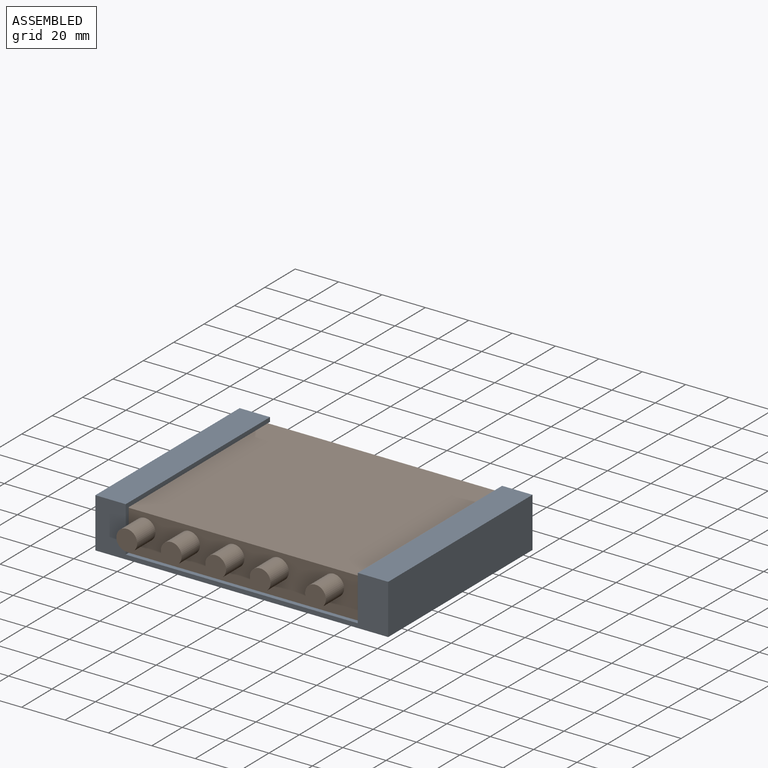
[diagram: assembled view]
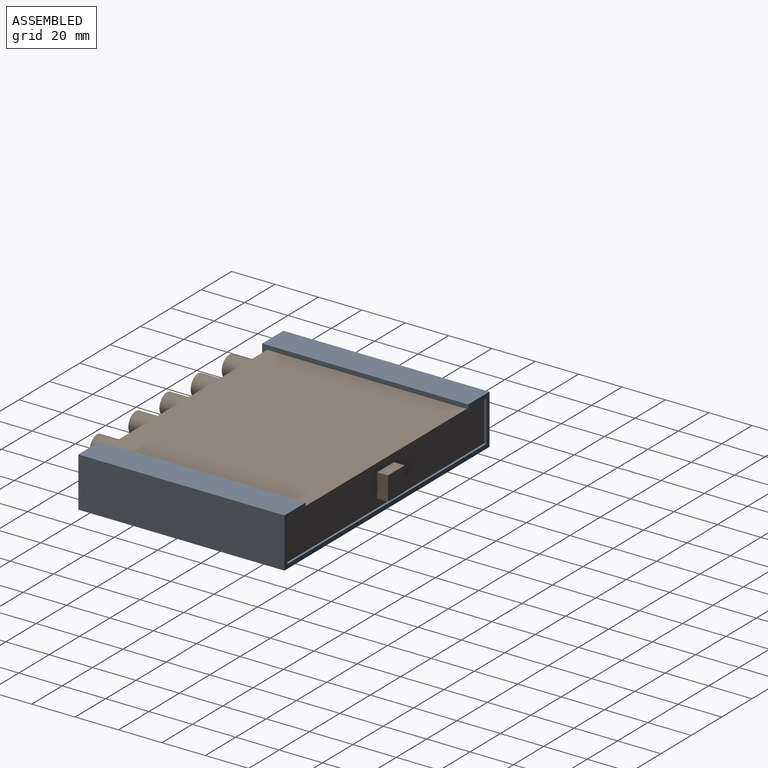
[diagram: assembled view, second angle]
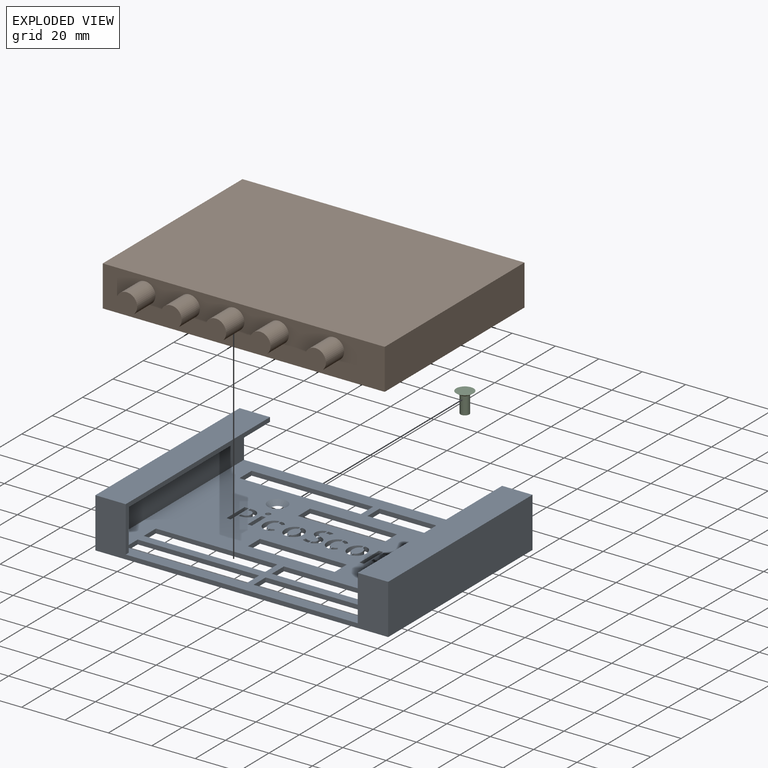
[diagram: exploded view]
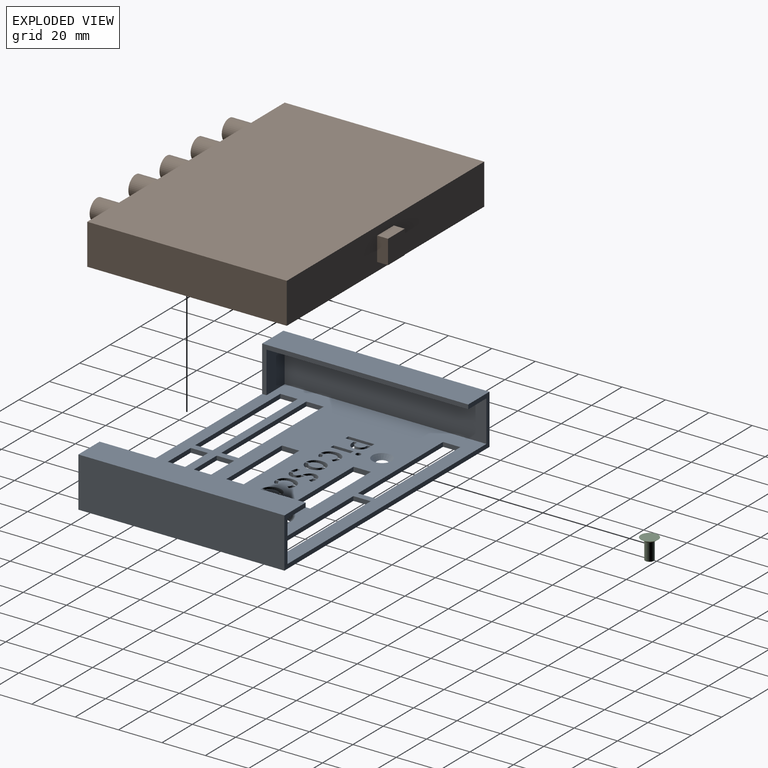
[diagram: exploded view, second angle]
ASSEMBLY  parts=3 mates=5
PART A: 326 faces, bbox 135x95x23 mm
  f0: plane 135x95mm, normal (0,0,-1), area 9135.7mm2, adj f3,f4,f7,f9,f16,f17,f18,f19
  f1: plane 131x95mm, normal (0,0,1), area 8620.2mm2, adj f3,f4,f6,f10,f12,f13,f14,f15
  f2: plane 95x14mm, normal (0,0,1), area 1330mm2, adj f3,f4,f7,f15
  f3: plane 135x23mm, normal (0,1,0), area 402mm2, adj f0,f1,f2,f5,f7,f8,f9,f10
  f4: plane 135x23mm, normal (0,-1,0), area 858mm2, adj f0,f1,f2,f7,f8,f9,f14,f15
  f5: plane 93x12mm, normal (0,0,-1), area 1116mm2, adj f3,f6,f10,f15
  f6: plane 19x12mm, normal (0,1,0), area 228mm2, adj f1,f5,f10,f15
  f7: plane 95x23mm, normal (1,0,0), area 2185mm2, adj f0,f2,f3,f4
  f8: plane 95x14mm, normal (0,0,1), area 1330mm2, adj f3,f4,f9,f14
  f9: plane 95x23mm, normal (-1,0,0), area 2185mm2, adj f0,f3,f4,f8
  f10: plane 93x19mm, normal (-1,0,0), area 1767mm2, adj f1,f3,f5,f6
  f11: plane 93x12mm, normal (0,0,-1), area 1116mm2, adj f3,f12,f13,f14
  f12: plane 93x19mm, normal (1,0,0), area 1767mm2, adj f1,f3,f11,f13
  f13: plane 19x12mm, normal (0,1,0), area 228mm2, adj f1,f11,f12,f14
  f14: plane 95x21mm, normal (1,0,0), area 228mm2, adj f1,f3,f4,f8,f11,f13
  f15: plane 95x21mm, normal (-1,0,0), area 228mm2, adj f1,f2,f3,f4,f5,f6
  f16: cone r=2.25mm half-angle=45deg, axis (0,0,1), area 61.8mm2, adj f0,f1
  f17: cone r=2.25mm half-angle=45deg, axis (0,0,1), area 61.8mm2, adj f0,f1
  f18: extruded ~2x1.76mm, area 3.6mm2, adj f0,f1,f19,f33
  f19: extruded ~2x1.76mm, area 3.6mm2, adj f0,f1,f18,f20
  f20: extruded ~2x1.45mm, area 3.3mm2, adj f0,f1,f19,f21
  f21: extruded ~2x1.22mm, area 3.2mm2, adj f0,f1,f20,f22
  f22: extruded ~2x1.61mm, area 3.4mm2, adj f0,f1,f21,f23
  f23: plane 2x1.56mm, normal (-1,0,0), area 3.1mm2, adj f0,f1,f22,f24
  f24: extruded ~2x0.76mm, area 1.7mm2, adj f0,f1,f23,f25
  f25: extruded ~2x0.7mm, area 1.8mm2, adj f0,f1,f24,f26
  f26: extruded ~2x0.96mm, area 2mm2, adj f0,f1,f25,f27
  f27: extruded ~2x1.14mm, area 2.3mm2, adj f0,f1,f26,f28
  f28: extruded ~2.04x2mm, area 4.2mm2, adj f0,f1,f27,f29
  f29: extruded ~2x1.3mm, area 3.4mm2, adj f0,f1,f28,f30
  f30: plane 2x1.52mm, normal (-1,0,0), area 3mm2, adj f0,f1,f29,f31
  f31: extruded ~2x1.58mm, area 3.3mm2, adj f0,f1,f30,f32
  f32: extruded ~2x1.23mm, area 3.2mm2, adj f0,f1,f31,f33
  f33: extruded ~2x1.42mm, area 3.3mm2, adj f0,f1,f18,f32
  f34: extruded ~2x1.63mm, area 3.4mm2, adj f0,f1,f35,f49
  f35: plane 2x1.53mm, normal (1,0,0), area 3.1mm2, adj f0,f1,f34,f36
  f36: extruded ~2x0.76mm, area 1.7mm2, adj f0,f1,f35,f37
  f37: extruded ~2x0.7mm, area 1.8mm2, adj f0,f1,f36,f38
  f38: extruded ~2x0.95mm, area 2mm2, adj f0,f1,f37,f39
  f39: extruded ~2x1.13mm, area 2.3mm2, adj f0,f1,f38,f40
  f40: extruded ~2.03x2mm, area 4.2mm2, adj f0,f1,f39,f41
  f41: extruded ~2x1.33mm, area 3.5mm2, adj f0,f1,f40,f42
  f42: plane 2x1.56mm, normal (1,0,0), area 3.1mm2, adj f0,f1,f41,f43
  f43: extruded ~2x1.6mm, area 3.3mm2, adj f0,f1,f42,f44
  f44: extruded ~2x1.24mm, area 3.2mm2, adj f0,f1,f43,f45
  f45: extruded ~2x1.43mm, area 3.3mm2, adj f0,f1,f44,f46
  f46: extruded ~2x1.77mm, area 3.6mm2, adj f0,f1,f45,f47
  f47: extruded ~2x1.77mm, area 3.6mm2, adj f0,f1,f46,f48
  f48: extruded ~2x1.46mm, area 3.3mm2, adj f0,f1,f47,f49
  f49: extruded ~2x1.23mm, area 3.2mm2, adj f0,f1,f34,f48
  f50: extruded ~2x1.74mm, area 3.5mm2, adj f0,f1,f51,f65
  f51: extruded ~2x1.76mm, area 3.6mm2, adj f0,f1,f50,f52
  f52: extruded ~2x1.46mm, area 3.3mm2, adj f0,f1,f51,f53
  f53: extruded ~2x1.22mm, area 3.2mm2, adj f0,f1,f52,f54
  f54: extruded ~2x1.61mm, area 3.4mm2, adj f0,f1,f53,f55
  f55: plane 2x1.61mm, normal (-1,0,0), area 3.2mm2, adj f0,f1,f54,f56
  f56: extruded ~2x0.76mm, area 1.7mm2, adj f0,f1,f55,f57
  f57: extruded ~2x0.68mm, area 1.8mm2, adj f0,f1,f56,f58
  f58: extruded ~2x0.94mm, area 2mm2, adj f0,f1,f57,f59
  f59: extruded ~2x1.13mm, area 2.3mm2, adj f0,f1,f58,f60
  f60: extruded ~2x1.99mm, area 4.2mm2, adj f0,f1,f59,f61
  f61: extruded ~2x1.3mm, area 3.4mm2, adj f0,f1,f60,f62
  f62: plane 2x1.58mm, normal (-1,0,0), area 3.2mm2, adj f0,f1,f61,f63
  f63: extruded ~2x1.59mm, area 3.3mm2, adj f0,f1,f62,f64
  f64: extruded ~2x1.23mm, area 3.2mm2, adj f0,f1,f63,f65
  f65: extruded ~2x1.43mm, area 3.3mm2, adj f0,f1,f50,f64
  f66: extruded ~2x1mm, area 2.1mm2, adj f0,f1,f67,f71
  f67: plane 2x1.61mm, normal (1,0,0), area 3.2mm2, adj f0,f1,f66,f68
  f68: extruded ~2x1.43mm, area 3mm2, adj f0,f1,f67,f69
  f69: extruded ~2x1.09mm, area 2.9mm2, adj f0,f1,f68,f70
  f70: plane 2x1.06mm, normal (-0.82,-0.57,0), area 2.6mm2, adj f0,f1,f69,f71
  f71: extruded ~2x0.79mm, area 1.9mm2, adj f0,f1,f66,f70
  f72: extruded ~2x1.51mm, area 3.1mm2, adj f0,f1,f73,f93
  f73: plane 2x0.83mm, normal (0,-1,0), area 1.7mm2, adj f0,f1,f72,f74
  f74: plane 2x1.48mm, normal (1,0,0), area 3mm2, adj f0,f1,f73,f75
  f75: plane 2x0.8mm, normal (0,1,0), area 1.6mm2, adj f0,f1,f74,f76
  f76: extruded ~2x1.21mm, area 2.5mm2, adj f0,f1,f75,f77
  f77: extruded ~2x0.71mm, area 1.9mm2, adj f0,f1,f76,f78
  f78: extruded ~2x0.73mm, area 1.6mm2, adj f0,f1,f77,f79
  f79: extruded ~2x0.68mm, area 1.4mm2, adj f0,f1,f78,f80
  f80: extruded ~2x1.23mm, area 2.5mm2, adj f0,f1,f79,f81
  f81: extruded ~2x0.77mm, area 1.8mm2, adj f0,f1,f80,f82
  f82: extruded ~2x0.64mm, area 1.5mm2, adj f0,f1,f81,f83
  f83: extruded ~2x0.71mm, area 1.4mm2, adj f0,f1,f82,f84
  f84: plane 2x1.12mm, normal (0,-1,0), area 2.2mm2, adj f0,f1,f83,f85
  f85: plane 2x1.43mm, normal (1,0,0), area 2.9mm2, adj f0,f1,f84,f86
  f86: plane 2x0.78mm, normal (0,1,0), area 1.6mm2, adj f0,f1,f85,f87
  f87: extruded ~2x1.73mm, area 3.5mm2, adj f0,f1,f86,f88
  f88: extruded ~2x1.33mm, area 3.1mm2, adj f0,f1,f87,f89
  f89: extruded ~2x1.24mm, area 3.1mm2, adj f0,f1,f88,f90
  f90: extruded ~2x1.65mm, area 3.4mm2, adj f0,f1,f89,f91
  f91: extruded ~2x1.56mm, area 3.2mm2, adj f0,f1,f90,f92
  f92: extruded ~2x1.18mm, area 3.1mm2, adj f0,f1,f91,f93
  f93: extruded ~2x1.34mm, area 3.1mm2, adj f0,f1,f72,f92
  f94: plane 2x1.99mm, normal (0,1,0), area 4mm2, adj f0,f1,f95,f97
  f95: plane 9.18x2mm, normal (-1,0,0), area 18.4mm2, adj f0,f1,f94,f96
  f96: plane 2x1.99mm, normal (0,-1,0), area 4mm2, adj f0,f1,f95,f97
  f97: plane 9.18x2mm, normal (1,0,0), area 18.4mm2, adj f0,f1,f94,f96
  f98: extruded ~2x0.82mm, area 1.8mm2, adj f0,f1,f99,f105
  f99: extruded ~2x0.83mm, area 1.8mm2, adj f0,f1,f98,f100
  f100: extruded ~2x0.83mm, area 1.8mm2, adj f0,f1,f99,f101
  f101: extruded ~2x0.82mm, area 1.8mm2, adj f0,f1,f100,f102
  f102: extruded ~2x0.83mm, area 1.8mm2, adj f0,f1,f101,f103
  f103: extruded ~2x0.81mm, area 1.8mm2, adj f0,f1,f102,f104
  f104: extruded ~2x0.82mm, area 1.8mm2, adj f0,f1,f103,f105
  f105: extruded ~2x0.83mm, area 1.8mm2, adj f0,f1,f98,f104
  f106: extruded ~2x0.67mm, area 1.7mm2, adj f0,f1,f107,f111
  f107: plane 2x1.06mm, normal (-0.77,0.64,0), area 2.8mm2, adj f0,f1,f106,f108
  f108: extruded ~2x1.16mm, area 3.1mm2, adj f0,f1,f107,f109
  f109: extruded ~2x1.54mm, area 3.2mm2, adj f0,f1,f108,f110
  f110: plane 2x1.56mm, normal (1,0,0), area 3.1mm2, adj f0,f1,f109,f111
  f111: extruded ~2x1.15mm, area 2.4mm2, adj f0,f1,f106,f110
  f112: extruded ~2x1.1mm, area 2.4mm2, adj f0,f1,f113,f124
  f113: plane 2x1.91mm, normal (1,0,0), area 3.8mm2, adj f0,f1,f112,f114
  f114: extruded ~2x0.96mm, area 2.4mm2, adj f0,f1,f113,f115
  f115: extruded ~2x0.94mm, area 2.1mm2, adj f0,f1,f114,f116
  f116: extruded ~2x1.77mm, area 4.9mm2, adj f0,f1,f115,f117
  f117: plane 2x1.56mm, normal (1,0,0), area 3.1mm2, adj f0,f1,f116,f118
  f118: extruded ~2x1.33mm, area 2.8mm2, adj f0,f1,f117,f119
  f119: extruded ~2x0.99mm, area 2.5mm2, adj f0,f1,f118,f120
  f120: extruded ~2x1mm, area 2.4mm2, adj f0,f1,f119,f121
  f121: extruded ~2x1.14mm, area 2.3mm2, adj f0,f1,f120,f122
  f122: extruded ~2x1.42mm, area 2.9mm2, adj f0,f1,f121,f123
  f123: extruded ~2x0.97mm, area 2.5mm2, adj f0,f1,f122,f124
  f124: extruded ~2x1.02mm, area 2.4mm2, adj f0,f1,f112,f123
  f125: extruded ~2x0.58mm, area 1.3mm2, adj f0,f1,f126,f136
  f126: plane 2x1.4mm, normal (0.97,-0.24,0), area 2.9mm2, adj f0,f1,f125,f127
  f127: extruded ~2x0.66mm, area 1.6mm2, adj f0,f1,f126,f128
  f128: extruded ~2x0.8mm, area 1.7mm2, adj f0,f1,f127,f129
  f129: extruded ~2x0.84mm, area 1.7mm2, adj f0,f1,f128,f130
  f130: extruded ~2x0.81mm, area 1.6mm2, adj f0,f1,f129,f131
  f131: plane 2x0.03mm, normal (0,1,0), area 0.1mm2, adj f0,f1,f130,f132
  f132: plane 2x1.55mm, normal (-1,0,0), area 3.1mm2, adj f0,f1,f131,f133
  f133: plane 2x0.05mm, normal (0,-1,0), area 0.1mm2, adj f0,f1,f132,f134
  f134: extruded ~2x0.7mm, area 1.4mm2, adj f0,f1,f133,f135
  f135: extruded ~2x0.75mm, area 1.5mm2, adj f0,f1,f134,f136
  f136: extruded ~2x0.72mm, area 1.5mm2, adj f0,f1,f125,f135
  f137: extruded ~2x1.29mm, area 2.6mm2, adj f0,f1,f138,f150
  f138: extruded ~2x1.29mm, area 2.7mm2, adj f0,f1,f137,f139
  f139: extruded ~2x0.94mm, area 2.4mm2, adj f0,f1,f138,f140
  f140: extruded ~2x0.98mm, area 2.4mm2, adj f0,f1,f139,f141
  f141: extruded ~2x1.08mm, area 2.4mm2, adj f0,f1,f140,f142
  f142: plane 2x1.86mm, normal (-1,0,0), area 3.7mm2, adj f0,f1,f141,f143
  f143: extruded ~2x0.86mm, area 2.2mm2, adj f0,f1,f142,f144
  f144: extruded ~2x1.03mm, area 2.2mm2, adj f0,f1,f143,f145
  f145: extruded ~2x0.9mm, area 2mm2, adj f0,f1,f144,f146
  f146: extruded ~2x0.86mm, area 2.2mm2, adj f0,f1,f145,f147
  f147: plane 2x1.71mm, normal (-1,0,0), area 3.4mm2, adj f0,f1,f146,f148
  f148: extruded ~2x1.18mm, area 2.5mm2, adj f0,f1,f147,f149
  f149: extruded ~2x0.98mm, area 2.4mm2, adj f0,f1,f148,f150
  f150: extruded ~2x1mm, area 2.4mm2, adj f0,f1,f137,f149
  f151: extruded ~2x0.2mm, area 0.5mm2, adj f0,f1,f152,f161
  f152: extruded ~2x0.16mm, area 0.4mm2, adj f0,f1,f151,f153
  f153: extruded ~2x0.37mm, area 0.8mm2, adj f0,f1,f152,f154
  f154: extruded ~2x0.47mm, area 1.1mm2, adj f0,f1,f153,f155
  f155: extruded ~2x0.46mm, area 1mm2, adj f0,f1,f154,f156
  f156: extruded ~2x1.2mm, area 2.6mm2, adj f0,f1,f155,f157
  f157: extruded ~2x1.46mm, area 2.9mm2, adj f0,f1,f156,f158
  f158: plane 2x1.64mm, normal (1,0,0), area 3.3mm2, adj f0,f1,f157,f159
  f159: extruded ~2x0.83mm, area 1.7mm2, adj f0,f1,f158,f160
  f160: extruded ~2x0.54mm, area 1.1mm2, adj f0,f1,f159,f161
  f161: extruded ~2x0.33mm, area 0.7mm2, adj f0,f1,f151,f160
  f162: extruded ~2x1.63mm, area 3.4mm2, adj f0,f1,f163,f177
  f163: plane 2x1.53mm, normal (1,0,0), area 3.1mm2, adj f0,f1,f162,f164
  f164: extruded ~2x0.76mm, area 1.7mm2, adj f0,f1,f163,f165
  f165: extruded ~2x0.7mm, area 1.8mm2, adj f0,f1,f164,f166
  f166: extruded ~2x0.95mm, area 2mm2, adj f0,f1,f165,f167
  f167: extruded ~2x1.13mm, area 2.3mm2, adj f0,f1,f166,f168
  f168: extruded ~2.03x2mm, area 4.2mm2, adj f0,f1,f167,f169
  f169: extruded ~2x1.33mm, area 3.5mm2, adj f0,f1,f168,f170
  f170: plane 2x1.56mm, normal (1,0,0), area 3.1mm2, adj f0,f1,f169,f171
  f171: extruded ~2x1.6mm, area 3.3mm2, adj f0,f1,f170,f172
  f172: extruded ~2x1.24mm, area 3.2mm2, adj f0,f1,f171,f173
  f173: extruded ~2x1.43mm, area 3.3mm2, adj f0,f1,f172,f174
  f174: extruded ~2x1.77mm, area 3.6mm2, adj f0,f1,f173,f175
  f175: extruded ~2x1.77mm, area 3.6mm2, adj f0,f1,f174,f176
  f176: extruded ~2x1.46mm, area 3.3mm2, adj f0,f1,f175,f177
  f177: extruded ~2x1.23mm, area 3.2mm2, adj f0,f1,f162,f176
  f178: extruded ~2x1.74mm, area 3.5mm2, adj f0,f1,f179,f193
  f179: extruded ~2x1.76mm, area 3.6mm2, adj f0,f1,f178,f180
  f180: extruded ~2x1.46mm, area 3.3mm2, adj f0,f1,f179,f181
  f181: extruded ~2x1.22mm, area 3.2mm2, adj f0,f1,f180,f182
  f182: extruded ~2x1.61mm, area 3.4mm2, adj f0,f1,f181,f183
  f183: plane 2x1.61mm, normal (-1,0,0), area 3.2mm2, adj f0,f1,f182,f184
  f184: extruded ~2x0.76mm, area 1.7mm2, adj f0,f1,f183,f185
  f185: extruded ~2x0.68mm, area 1.8mm2, adj f0,f1,f184,f186
  f186: extruded ~2x0.94mm, area 2mm2, adj f0,f1,f185,f187
  f187: extruded ~2x1.13mm, area 2.3mm2, adj f0,f1,f186,f188
  f188: extruded ~2x1.99mm, area 4.2mm2, adj f0,f1,f187,f189
  f189: extruded ~2x1.3mm, area 3.4mm2, adj f0,f1,f188,f190
  f190: plane 2x1.58mm, normal (-1,0,0), area 3.2mm2, adj f0,f1,f189,f191
  f191: extruded ~2x1.59mm, area 3.3mm2, adj f0,f1,f190,f192
  f192: extruded ~2x1.23mm, area 3.2mm2, adj f0,f1,f191,f193
  f193: extruded ~2x1.43mm, area 3.3mm2, adj f0,f1,f178,f192
  f194: extruded ~2x1mm, area 2.1mm2, adj f0,f1,f195,f199
  f195: plane 2x1.61mm, normal (1,0,0), area 3.2mm2, adj f0,f1,f194,f196
  f196: extruded ~2x1.43mm, area 3mm2, adj f0,f1,f195,f197
  f197: extruded ~2x1.09mm, area 2.9mm2, adj f0,f1,f196,f198
  f198: plane 2x1.06mm, normal (-0.82,-0.57,0), area 2.6mm2, adj f0,f1,f197,f199
  f199: extruded ~2x0.79mm, area 1.9mm2, adj f0,f1,f194,f198
  f200: extruded ~2x0.67mm, area 1.7mm2, adj f0,f1,f201,f205
  f201: plane 2x1.06mm, normal (-0.77,0.64,0), area 2.8mm2, adj f0,f1,f200,f202
  f202: extruded ~2x1.16mm, area 3.1mm2, adj f0,f1,f201,f203
  f203: extruded ~2x1.54mm, area 3.2mm2, adj f0,f1,f202,f204
  f204: plane 2x1.56mm, normal (1,0,0), area 3.1mm2, adj f0,f1,f203,f205
  f205: extruded ~2x1.15mm, area 2.4mm2, adj f0,f1,f200,f204
  f206: extruded ~2x0.45mm, area 0.9mm2, adj f0,f1,f207,f229
  f207: extruded ~2x1.16mm, area 2.4mm2, adj f0,f1,f206,f208
  f208: extruded ~2x0.81mm, area 2.1mm2, adj f0,f1,f207,f209
  f209: extruded ~2x0.94mm, area 2.1mm2, adj f0,f1,f208,f210
  f210: extruded ~2x1.18mm, area 2.4mm2, adj f0,f1,f209,f211
  f211: extruded ~2x0.86mm, area 1.7mm2, adj f0,f1,f210,f212
  f212: extruded ~2x0.98mm, area 2.1mm2, adj f0,f1,f211,f213
  f213: extruded ~2x0.85mm, area 2.1mm2, adj f0,f1,f212,f214
  f214: extruded ~2x0.99mm, area 2.2mm2, adj f0,f1,f213,f215
  f215: plane 2x1.56mm, normal (-1,0,0), area 3.1mm2, adj f0,f1,f214,f216
  f216: extruded ~2x1.49mm, area 3.1mm2, adj f0,f1,f215,f217
  f217: extruded ~2x1.21mm, area 3.2mm2, adj f0,f1,f216,f218
  f218: extruded ~2x1.46mm, area 3.4mm2, adj f0,f1,f217,f219
  f219: extruded ~2x1.76mm, area 3.6mm2, adj f0,f1,f218,f220
  f220: extruded ~2x1.82mm, area 3.7mm2, adj f0,f1,f219,f221
  f221: extruded ~2x1.48mm, area 3.5mm2, adj f0,f1,f220,f222
  f222: extruded ~2x1.33mm, area 3.4mm2, adj f0,f1,f221,f223
  f223: extruded ~2x1.68mm, area 3.5mm2, adj f0,f1,f222,f224
  f224: extruded ~2x1.82mm, area 3.7mm2, adj f0,f1,f223,f225
  f225: extruded ~2x1.25mm, area 3.2mm2, adj f0,f1,f224,f226
  f226: plane 2x1.09mm, normal (-0.84,-0.55,0), area 2.6mm2, adj f0,f1,f225,f227
  f227: extruded ~2x0.53mm, area 1.3mm2, adj f0,f1,f226,f228
  f228: extruded ~2x0.6mm, area 1.3mm2, adj f0,f1,f227,f229
  f229: extruded ~2x0.57mm, area 1.2mm2, adj f0,f1,f206,f228
  f230: extruded ~2x1.59mm, area 3.3mm2, adj f0,f1,f231,f242
  f231: plane 2x1.53mm, normal (1,0,0), area 3.1mm2, adj f0,f1,f230,f232
  f232: extruded ~2x0.8mm, area 1.7mm2, adj f0,f1,f231,f233
  f233: extruded ~2x0.63mm, area 1.7mm2, adj f0,f1,f232,f234
  f234: extruded ~2x0.72mm, area 1.7mm2, adj f0,f1,f233,f235
  f235: extruded ~2x0.82mm, area 1.7mm2, adj f0,f1,f234,f236
  f236: plane 3.76x2mm, normal (0,-1,0), area 7.5mm2, adj f0,f1,f235,f237
  f237: plane 2x1.43mm, normal (1,0,0), area 2.9mm2, adj f0,f1,f236,f238
  f238: plane 5.58x2mm, normal (0,1,0), area 11.2mm2, adj f0,f1,f237,f239
  f239: extruded ~2x0.78mm, area 1.6mm2, adj f0,f1,f238,f240
  f240: extruded ~2x1.66mm, area 3.4mm2, adj f0,f1,f239,f241
  f241: extruded ~2x1.42mm, area 3.2mm2, adj f0,f1,f240,f242
  f242: extruded ~2x1.21mm, area 3.2mm2, adj f0,f1,f230,f241
  f243: extruded ~2x1.67mm, area 3.4mm2, adj f0,f1,f244,f268
  f244: extruded ~2x1.33mm, area 2.9mm2, adj f0,f1,f243,f245
  f245: extruded ~2x0.9mm, area 2.5mm2, adj f0,f1,f244,f246
  f246: extruded ~2x1.03mm, area 2.3mm2, adj f0,f1,f245,f247
  f247: extruded ~2x1.09mm, area 2.2mm2, adj f0,f1,f246,f248
  f248: extruded ~2x0.95mm, area 1.9mm2, adj f0,f1,f247,f249
  f249: extruded ~2x0.83mm, area 1.8mm2, adj f0,f1,f248,f250
  f250: plane 2x1.73mm, normal (1,0,0), area 3.5mm2, adj f0,f1,f249,f251
  f251: extruded ~2x0.63mm, area 1.6mm2, adj f0,f1,f250,f252
  f252: extruded ~2x0.77mm, area 1.6mm2, adj f0,f1,f251,f253
  f253: extruded ~2x0.89mm, area 1.9mm2, adj f0,f1,f252,f254
  f254: extruded ~2x0.7mm, area 1.9mm2, adj f0,f1,f253,f255
  f255: extruded ~2x1.01mm, area 2.2mm2, adj f0,f1,f254,f256
  f256: extruded ~2x1.21mm, area 2.4mm2, adj f0,f1,f255,f257
  f257: extruded ~2x1.23mm, area 2.5mm2, adj f0,f1,f256,f258
  f258: extruded ~2x0.99mm, area 2.2mm2, adj f0,f1,f257,f259
  f259: extruded ~2x0.68mm, area 1.9mm2, adj f0,f1,f258,f260
  f260: extruded ~2x0.89mm, area 1.9mm2, adj f0,f1,f259,f261
  f261: extruded ~2x1.32mm, area 3mm2, adj f0,f1,f260,f262
  f262: plane 2x1.69mm, normal (1,0,0), area 3.4mm2, adj f0,f1,f261,f263
  f263: extruded ~2x0.89mm, area 1.9mm2, adj f0,f1,f262,f264
  f264: extruded ~2x1.08mm, area 2.2mm2, adj f0,f1,f263,f265
  f265: extruded ~2x1.59mm, area 3.3mm2, adj f0,f1,f264,f266
  f266: extruded ~2x1.12mm, area 3.1mm2, adj f0,f1,f265,f267
  f267: extruded ~2x1.54mm, area 3.4mm2, adj f0,f1,f266,f268
  f268: extruded ~2x1.8mm, area 3.6mm2, adj f0,f1,f243,f267
  f269: plane 2x0.93mm, normal (-0.98,-0.22,0), area 1.9mm2, adj f0,f1,f270,f273
  f270: plane 2x1.77mm, normal (0,-1,0), area 3.5mm2, adj f0,f1,f269,f271
  f271: plane 12.79x2mm, normal (1,0,0), area 25.6mm2, adj f0,f1,f270,f272
  f272: plane 2x1.98mm, normal (0,1,0), area 4mm2, adj f0,f1,f271,f273
  f273: plane 11.87x2mm, normal (-1,0,0), area 23.7mm2, adj f0,f1,f269,f272
  f274: extruded ~2x1.76mm, area 3.6mm2, adj f0,f1,f275,f289
  f275: extruded ~2x1.76mm, area 3.6mm2, adj f0,f1,f274,f276
  f276: extruded ~2x1.45mm, area 3.3mm2, adj f0,f1,f275,f277
  f277: extruded ~2x1.22mm, area 3.2mm2, adj f0,f1,f276,f278
  f278: extruded ~2x1.61mm, area 3.4mm2, adj f0,f1,f277,f279
  f279: plane 2x1.56mm, normal (-1,0,0), area 3.1mm2, adj f0,f1,f278,f280
  f280: extruded ~2x0.76mm, area 1.7mm2, adj f0,f1,f279,f281
  f281: extruded ~2x0.7mm, area 1.8mm2, adj f0,f1,f280,f282
  f282: extruded ~2x0.96mm, area 2mm2, adj f0,f1,f281,f283
  f283: extruded ~2x1.14mm, area 2.3mm2, adj f0,f1,f282,f284
  f284: extruded ~2.04x2mm, area 4.2mm2, adj f0,f1,f283,f285
  f285: extruded ~2x1.3mm, area 3.4mm2, adj f0,f1,f284,f286
  f286: plane 2x1.52mm, normal (-1,0,0), area 3mm2, adj f0,f1,f285,f287
  f287: extruded ~2x1.58mm, area 3.3mm2, adj f0,f1,f286,f288
  f288: extruded ~2x1.23mm, area 3.2mm2, adj f0,f1,f287,f289
  f289: extruded ~2x1.42mm, area 3.3mm2, adj f0,f1,f274,f288
  f290: plane 2x1.95mm, normal (0,-1,0), area 3.9mm2, adj f0,f1,f291,f293
  f291: plane 11.99x2mm, normal (1,0,0), area 24mm2, adj f0,f1,f290,f292
  f292: plane 2x1.95mm, normal (0,1,0), area 3.9mm2, adj f0,f1,f291,f293
  f293: plane 11.99x2mm, normal (-1,0,0), area 24mm2, adj f0,f1,f290,f292
  f294: plane 8x2mm, normal (-1,0,0), area 16mm2, adj f0,f1,f295,f297
  f295: plane 56x2mm, normal (0,-1,0), area 112mm2, adj f0,f1,f294,f296
  f296: plane 8x2mm, normal (1,0,0), area 16mm2, adj f0,f1,f295,f297
  f297: plane 56x2mm, normal (0,1,0), area 112mm2, adj f0,f1,f294,f296
  f298: plane 8x2mm, normal (-1,0,0), area 16mm2, adj f0,f1,f299,f301
  f299: plane 40x2mm, normal (0,-1,0), area 80mm2, adj f0,f1,f298,f300
  f300: plane 8x2mm, normal (1,0,0), area 16mm2, adj f0,f1,f299,f301
  f301: plane 40x2mm, normal (0,1,0), area 80mm2, adj f0,f1,f298,f300
  f302: plane 56x2mm, normal (0,-1,0), area 112mm2, adj f0,f1,f303,f305
  f303: plane 8x2mm, normal (1,0,0), area 16mm2, adj f0,f1,f302,f304
  f304: plane 56x2mm, normal (0,1,0), area 112mm2, adj f0,f1,f303,f305
  f305: plane 8x2mm, normal (-1,0,0), area 16mm2, adj f0,f1,f302,f304
  f306: plane 56x2mm, normal (0,-1,0), area 112mm2, adj f0,f1,f307,f309
  f307: plane 8x2mm, normal (1,0,0), area 16mm2, adj f0,f1,f306,f308
  f308: plane 56x2mm, normal (0,1,0), area 112mm2, adj f0,f1,f307,f309
  f309: plane 8x2mm, normal (-1,0,0), area 16mm2, adj f0,f1,f306,f308
  f310: plane 8x2mm, normal (-1,0,0), area 16mm2, adj f0,f1,f311,f313
  f311: plane 56x2mm, normal (0,-1,0), area 112mm2, adj f0,f1,f310,f312
  f312: plane 8x2mm, normal (1,0,0), area 16mm2, adj f0,f1,f311,f313
  f313: plane 56x2mm, normal (0,1,0), area 112mm2, adj f0,f1,f310,f312
  f314: plane 56x2mm, normal (0,1,0), area 112mm2, adj f0,f1,f315,f317
  f315: plane 8x2mm, normal (-1,0,0), area 16mm2, adj f0,f1,f314,f316
  f316: plane 56x2mm, normal (0,-1,0), area 112mm2, adj f0,f1,f315,f317
  f317: plane 8x2mm, normal (1,0,0), area 16mm2, adj f0,f1,f314,f316
  f318: plane 8x2mm, normal (-1,0,0), area 16mm2, adj f0,f1,f319,f321
  f319: plane 56x2mm, normal (0,-1,0), area 112mm2, adj f0,f1,f318,f320
  f320: plane 8x2mm, normal (1,0,0), area 16mm2, adj f0,f1,f319,f321
  f321: plane 56x2mm, normal (0,1,0), area 112mm2, adj f0,f1,f318,f320
  f322: plane 40x2mm, normal (0,1,0), area 80mm2, adj f0,f1,f323,f325
  f323: plane 8x2mm, normal (-1,0,0), area 16mm2, adj f0,f1,f322,f324
  f324: plane 40x2mm, normal (0,-1,0), area 80mm2, adj f0,f1,f323,f325
  f325: plane 8x2mm, normal (1,0,0), area 16mm2, adj f0,f1,f322,f324
PART B: 21 faces, bbox 130x109x18.8 mm
  f0: plane 92x18.75mm, normal (1,0,0), area 1725mm2, adj f1,f3,f4,f5
  f1: plane 130x18.75mm, normal (0,1,0), area 2316.5mm2, adj f0,f2,f4,f5,f16,f17,f18,f19
  f2: plane 92x18.75mm, normal (-1,0,0), area 1725mm2, adj f1,f3,f4,f5
  f3: plane 130x18.75mm, normal (0,-1,0), area 2075.6mm2, adj f0,f2,f4,f5,f6,f8,f10,f12
  f4: plane 130x92mm, normal (0,0,1), area 11960mm2, adj f0,f1,f2,f3
  f5: plane 130x92mm, normal (0,0,-1), area 11960mm2, adj f0,f1,f2,f3
  f6: cylinder r=4.8mm len=12mm, axis (0,1,0), area 361.9mm2, adj f3,f7
  f7: plane 9.6x9.6mm, normal (0,-1,0), area 72.4mm2, adj f6
  f8: cylinder r=4.8mm len=12mm, axis (0,1,0), area 361.9mm2, adj f3,f9
  f9: plane 9.6x9.6mm, normal (0,-1,0), area 72.4mm2, adj f8
  f10: cylinder r=4.8mm len=12mm, axis (0,1,0), area 361.9mm2, adj f3,f11
  f11: plane 9.6x9.6mm, normal (0,-1,0), area 72.4mm2, adj f10
  f12: cylinder r=4.8mm len=12mm, axis (0,1,0), area 361.9mm2, adj f3,f13
  f13: plane 9.6x9.6mm, normal (0,-1,0), area 72.4mm2, adj f12
  f14: cylinder r=4.8mm len=12mm, axis (0,1,0), area 361.9mm2, adj f3,f15
  f15: plane 9.6x9.6mm, normal (0,-1,0), area 72.4mm2, adj f14
  f16: plane 11x5mm, normal (-1,0,0), area 55mm2, adj f1,f17,f19,f20
  f17: plane 11x5mm, normal (0,0,1), area 55mm2, adj f1,f16,f18,f20
  f18: plane 11x5mm, normal (1,0,0), area 55mm2, adj f1,f17,f19,f20
  f19: plane 11x5mm, normal (0,0,-1), area 55mm2, adj f1,f16,f18,f20
  f20: plane 11x11mm, normal (0,1,0), area 121mm2, adj f16,f17,f18,f19
PART C: 4 faces, bbox 8x8x9.3 mm
  f0: plane 8x8mm, normal (0,0,1), area 50.3mm2, adj f1
  f1: cone r=4mm half-angle=57deg, axis (0,0,1), area 45mm2, adj f0,f2
  f2: cylinder r=2mm len=8mm, axis (0,0,1), area 100.5mm2, adj f1,f3
  f3: plane 4x4mm, normal (0,0,-1), area 12.6mm2, adj f2
PLACE A t=(13,-22.21,24.43)mm fixed
PLACE B t=(12.5,25.79,14.93)mm
PLACE C t=(-19.5,47.79,14.93)mm
MATE planar B.f5 <-> A.f1  axis (0,0,-1) through (12.5,25.79,14.93)mm
MATE planar A.f6 <-> B.f3  axis (0,1,0) through (72.5,-20.21,33.93)mm
MATE planar A.f1 <-> C.f1  axis (0,0,1) through (13,27.36,14.93)mm
MATE cylindrical C.f1 <-> A.f17  axis (0,0,1) through (-19.5,47.79,5.63)mm
MATE planar B.f2 <-> A.f12  axis (-1,0,0) through (-52.5,25.79,24.3)mm
